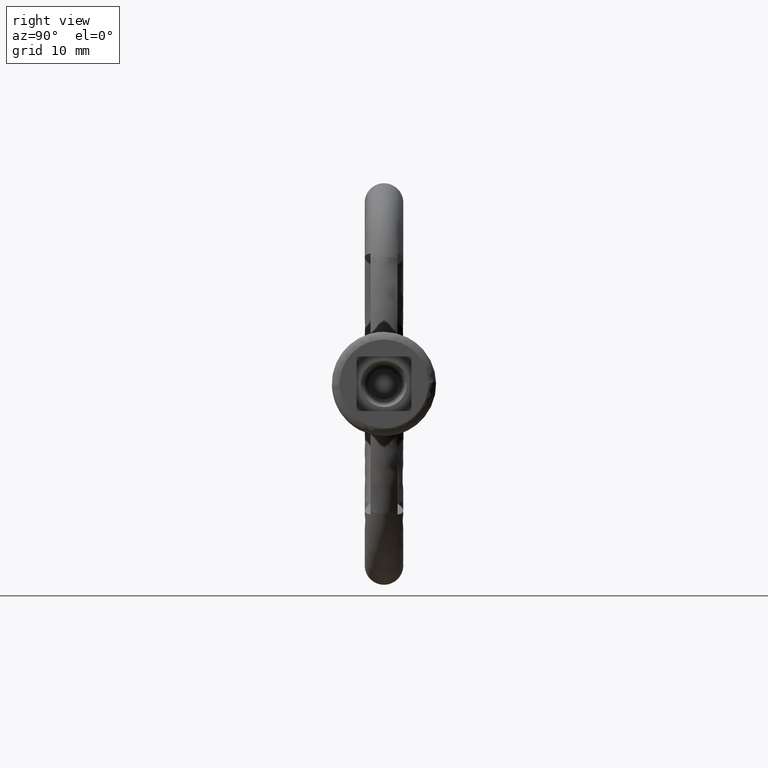
[diagram: clean part render]
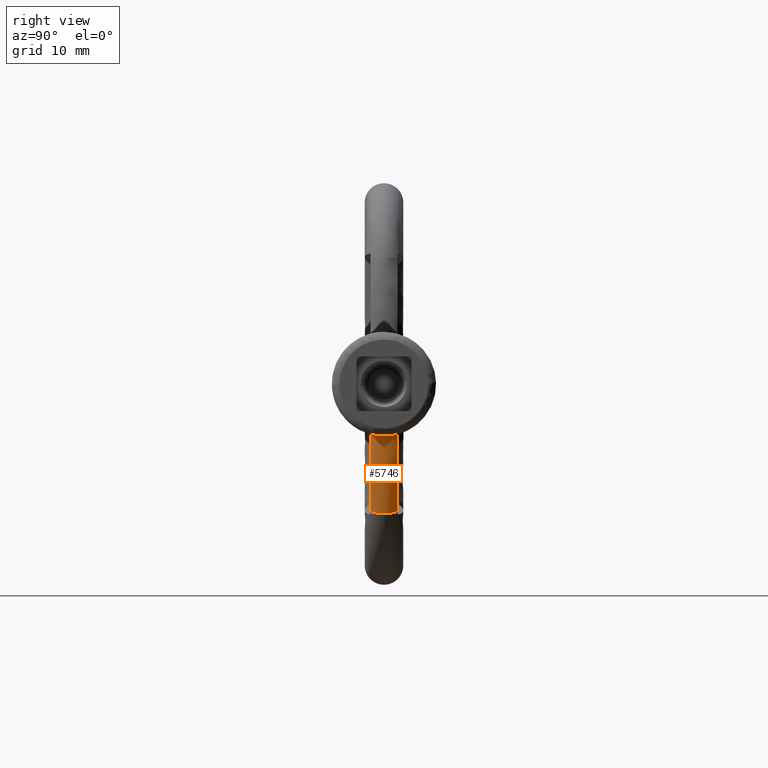
[diagram: same view with one face highlighted and labeled with its STEP entity id]
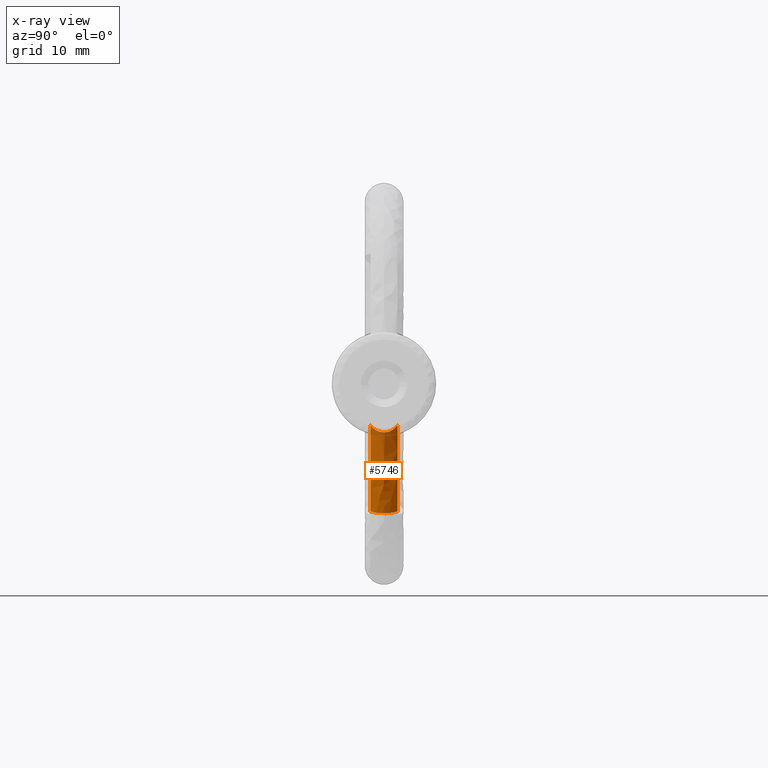
[diagram: x-ray of the same camera — body ghosted, the highlighted face saturated]
A machine part, right view. The second image highlights one B-rep face of the part: STEP entity #5746.
The next image is the same camera in x-ray: the body ghosted, the highlighted face saturated — about 6% of this face is hidden behind the body in this view.
In plain terms, the highlighted face is a freeform B-spline surface patch.
Its self-contained STEP definition (entity closure, byte-faithful):
#3689=CARTESIAN_POINT('',(-49.542227668088202,1.750000083120905,-16.514882048296450));
#3690=VERTEX_POINT('',#3689);
#3700=CARTESIAN_POINT('',(-49.542488641483303,-1.750000083120950,-16.514784746970950));
#3701=VERTEX_POINT('',#3700);
#3702=CARTESIAN_POINT('',(-49.542227668088202,1.750000083120905,-16.514882048296450));
#3703=CARTESIAN_POINT('',(-49.436352807175950,1.634605096142044,-16.554356434171599));
#3704=CARTESIAN_POINT('',(-49.342369711688221,1.509065012805741,-16.589397098656640));
#3705=CARTESIAN_POINT('',(-49.238999088108152,1.340103888891454,-16.627937812980289));
#3706=CARTESIAN_POINT('',(-49.219038310433163,1.305703093830373,-16.635379991641880));
#3707=CARTESIAN_POINT('',(-49.180556436336047,1.235673283520915,-16.649727578344759));
#3708=CARTESIAN_POINT('',(-49.161995270033422,1.199956078433738,-16.656647926046190));
#3709=CARTESIAN_POINT('',(-49.109002892454207,1.091969803959534,-16.676405611504041));
#3710=CARTESIAN_POINT('',(-49.077124383186217,1.018670869056449,-16.688291199879760));
#3711=CARTESIAN_POINT('',(-48.991519276759803,0.794970694440711,-16.720208222054779));
#3712=CARTESIAN_POINT('',(-48.947698251124223,0.640813425817311,-16.736546461894569));
#3713=CARTESIAN_POINT('',(-48.910311135892307,0.441523155305128,-16.750485881574392));
#3714=CARTESIAN_POINT('',(-48.903713155462221,0.401289736767499,-16.752945873969271));
#3715=CARTESIAN_POINT('',(-48.892443811560177,0.321031922938647,-16.757147538514481));
#3716=CARTESIAN_POINT('',(-48.887749961168261,0.280900951170760,-16.758897594693920));
#3717=CARTESIAN_POINT('',(-48.876475130904460,0.160501875860095,-16.763101304820761));
#3718=CARTESIAN_POINT('',(-48.868911231132962,-0.000046617480421,-16.765921430864900));
#3719=CARTESIAN_POINT('',(-48.876499829920178,-0.160628366531293,-16.763092096032480));
#3720=CARTESIAN_POINT('',(-48.887800024746319,-0.281076988026819,-16.758878928977129));
#3721=CARTESIAN_POINT('',(-48.892503489158813,-0.321228584405065,-16.757125288306760));
#3722=CARTESIAN_POINT('',(-48.903795624121472,-0.401535914688346,-16.752915126338070));
#3723=CARTESIAN_POINT('',(-48.910404352219132,-0.441778718152602,-16.750451126777751));
#3724=CARTESIAN_POINT('',(-48.947809572292549,-0.640948742032351,-16.736504956887089));
#3725=CARTESIAN_POINT('',(-48.991643869153087,-0.795095001319536,-16.720161769004399));
#3726=CARTESIAN_POINT('',(-49.077328284832632,-1.018877551538323,-16.688215177159229));
#3727=CARTESIAN_POINT('',(-49.109243021302213,-1.092220657593319,-16.676316081827341));
#3728=CARTESIAN_POINT('',(-49.162313053045423,-1.200296009927113,-16.656529443784819));
#3729=CARTESIAN_POINT('',(-49.180869232341131,-1.235978111354045,-16.649610955443809));
#3730=CARTESIAN_POINT('',(-49.219330212308250,-1.305929601268238,-16.635271158914140));
#3731=CARTESIAN_POINT('',(-49.239281249497793,-1.340296246384108,-16.627832611894519));
#3732=CARTESIAN_POINT('',(-49.342609186727437,-1.509109319814224,-16.589307812763110));
#3733=CARTESIAN_POINT('',(-49.436576746225093,-1.634603150956800,-16.554272940722871));
#3734=CARTESIAN_POINT('',(-49.542488641483303,-1.750000083120950,-16.514784746970950));
#3735=B_SPLINE_CURVE_WITH_KNOTS('',3,(#3702,#3703,#3704,#3705,#3706,#3707,#3708,#3709,#3710,#3711,#3712,#3713,#3714,#3715,#3716,#3717,#3718,#3719,#3720,#3721,#3722,#3723,#3724,#3725,#3726,#3727,#3728,#3729,#3730,#3731,#3732,#3733,#3734),.UNSPECIFIED.,.F.,.U.,(4,2,2,2,2,2,2,2,1,2,2,2,2,2,2,2,4),(0.0,0.124999999999990,0.156249999999989,0.187499999999988,0.249999999999988,0.374999999999988,0.406249999999988,0.437499999999989,0.499999999999990,0.562499999999991,0.593749999999991,0.624999999999992,0.749999999999992,0.812499999999993,0.843749999999994,0.874999999999995,1.0),.UNSPECIFIED.);
#3736=EDGE_CURVE('',#3690,#3701,#3735,.T.);
#4295=CARTESIAN_POINT('',(-47.075520128235993,-1.750000083120955,-5.325313244111761));
#4296=VERTEX_POINT('',#4295);
#4333=CARTESIAN_POINT('',(-46.591765696887897,-0.889006842577544,-6.074761937357280));
#4334=VERTEX_POINT('',#4333);
#4335=CARTESIAN_POINT('',(-46.591765696887933,-0.889006842577576,-6.074761937357240));
#4336=CARTESIAN_POINT('',(-46.622055321377061,-0.979022905404405,-6.031425578782282));
#4337=CARTESIAN_POINT('',(-46.655792208353454,-1.064137838752979,-5.982620537957151));
#4338=CARTESIAN_POINT('',(-46.728856052240680,-1.225663909506794,-5.874937776632524));
#4339=CARTESIAN_POINT('',(-46.768190976832081,-1.302064257696822,-5.816048274744129));
#4340=CARTESIAN_POINT('',(-46.830677815279508,-1.410552309743435,-5.720340673659657));
#4341=CARTESIAN_POINT('',(-46.852024615951457,-1.445570891637962,-5.687302509143936));
#4342=CARTESIAN_POINT('',(-46.895264499839982,-1.512888964961958,-5.619587953174449));
#4343=CARTESIAN_POINT('',(-46.917210113654043,-1.545280347784981,-5.584831352364615));
#4344=CARTESIAN_POINT('',(-46.983850977750393,-1.638893618314006,-5.477966522992940));
#4345=CARTESIAN_POINT('',(-47.029345474905462,-1.696562773274048,-5.403267379843959));
#4346=CARTESIAN_POINT('',(-47.075520128235993,-1.750000083120960,-5.325313244111780));
#4347=B_SPLINE_CURVE_WITH_KNOTS('',3,(#4335,#4336,#4337,#4338,#4339,#4340,#4341,#4342,#4343,#4344,#4345,#4346),.UNSPECIFIED.,.F.,.U.,(4,2,2,2,2,4),(0.0,0.249999999999997,0.499999999999994,0.624999999999995,0.749999999999997,1.0),.UNSPECIFIED.);
#4348=EDGE_CURVE('',#4334,#4296,#4347,.T.);
#4453=CARTESIAN_POINT('',(-46.591762697737913,0.889302414401098,-6.074687545378510));
#4454=VERTEX_POINT('',#4453);
#4470=CARTESIAN_POINT('',(-46.591762697737913,0.889302414401098,-6.074687545378510));
#4471=CARTESIAN_POINT('',(-46.569051518642432,0.821807789692495,-6.107187469426424));
#4472=CARTESIAN_POINT('',(-46.548435407724433,0.752257730846570,-6.135326337162444));
#4473=CARTESIAN_POINT('',(-46.521168465722901,0.644885993262162,-6.171481173932754));
#4474=CARTESIAN_POINT('',(-46.512689486557328,0.608586541356100,-6.182521058734532));
#4475=CARTESIAN_POINT('',(-46.497046540548610,0.534960307101992,-6.202620472309302));
#4476=CARTESIAN_POINT('',(-46.489863104770834,0.497512719883637,-6.211704256108045));
#4477=CARTESIAN_POINT('',(-46.457766303058293,0.309309809348197,-6.251865952380342));
#4478=CARTESIAN_POINT('',(-46.444227596778141,0.156346724316924,-6.267654642252473));
#4479=CARTESIAN_POINT('',(-46.444158826584932,-0.076766264290345,-6.267746945149627));
#4480=CARTESIAN_POINT('',(-46.447594844199926,-0.155408760157789,-6.263671770039501));
#4481=CARTESIAN_POINT('',(-46.461003430619577,-0.310209084563453,-6.247490788610668));
#4482=CARTESIAN_POINT('',(-46.470888623651327,-0.386112021366676,-6.235483199034554));
#4483=CARTESIAN_POINT('',(-46.496344757256637,-0.535047480916199,-6.203636976646159));
#4484=CARTESIAN_POINT('',(-46.511918651230403,-0.608078317174014,-6.183793441134776));
#4485=CARTESIAN_POINT('',(-46.548230280372778,-0.751222932873680,-6.135669550341196));
#4486=CARTESIAN_POINT('',(-46.569047358869199,-0.821491468025731,-6.107265808210951));
#4487=CARTESIAN_POINT('',(-46.591765696887897,-0.889006842577544,-6.074761937357280));
#4488=B_SPLINE_CURVE_WITH_KNOTS('',3,(#4470,#4471,#4472,#4473,#4474,#4475,#4476,#4477,#4478,#4479,#4480,#4481,#4482,#4483,#4484,#4485,#4486,#4487),.UNSPECIFIED.,.F.,.U.,(4,2,2,2,2,2,2,2,4),(0.0,0.125000000000000,0.187500000000000,0.250000000000000,0.500000000000000,0.625000000000000,0.750000000000000,0.875000000000000,1.0),.UNSPECIFIED.);
#4489=EDGE_CURVE('',#4454,#4334,#4488,.T.);
#4544=CARTESIAN_POINT('',(-47.075261789441697,1.750000083120935,-5.325572649450949));
#4545=VERTEX_POINT('',#4544);
#4589=CARTESIAN_POINT('',(-47.075261789441697,1.750000083120970,-5.325572649450949));
#4590=CARTESIAN_POINT('',(-46.983063487724742,1.643263802456131,-5.481226556282470));
#4591=CARTESIAN_POINT('',(-46.893818063663041,1.520190950813069,-5.623439923555766));
#4592=CARTESIAN_POINT('',(-46.769506672357352,1.304790832544557,-5.813936333877050));
#4593=CARTESIAN_POINT('',(-46.729520367145497,1.227358331891607,-5.873840061618807));
#4594=CARTESIAN_POINT('',(-46.655917374799252,1.064794797618159,-5.982347308906584));
#4595=CARTESIAN_POINT('',(-46.622062460022107,0.979349306089796,-6.031328283018690));
#4596=CARTESIAN_POINT('',(-46.591762697737892,0.889302414401115,-6.074687545378525));
#4597=B_SPLINE_CURVE_WITH_KNOTS('',3,(#4589,#4590,#4591,#4592,#4593,#4594,#4595,#4596),.UNSPECIFIED.,.F.,.U.,(4,2,2,4),(0.0,0.499999999999997,0.749999999999998,1.0),.UNSPECIFIED.);
#4598=EDGE_CURVE('',#4545,#4454,#4597,.T.);
#5456=CARTESIAN_POINT('',(-49.542227668088202,1.750000083120905,-16.514882048296450));
#5457=CARTESIAN_POINT('',(-49.541368447066453,1.750000083122209,-16.512547654743639));
#5458=CARTESIAN_POINT('',(-49.540507482275473,1.750000083122209,-16.510208520517409));
#5459=CARTESIAN_POINT('',(-49.328141045218267,1.750000083122209,-15.933234531078471));
#5460=CARTESIAN_POINT('',(-49.120571820382203,1.750000083122209,-15.329144110259691));
#5461=CARTESIAN_POINT('',(-48.741030355812313,1.750000083122209,-14.137451051057930));
#5462=CARTESIAN_POINT('',(-48.564495040787307,1.750000083122209,-13.537461999376930));
#5463=CARTESIAN_POINT('',(-48.075069351152727,1.750000083122209,-11.726754575610000));
#5464=CARTESIAN_POINT('',(-47.802382239598558,1.750000083122209,-10.505287517157850));
#5465=CARTESIAN_POINT('',(-47.352770811373077,1.750000083122209,-7.966967845864183));
#5466=CARTESIAN_POINT('',(-47.182906888151592,1.750000083122209,-6.648905702699103));
#5467=CARTESIAN_POINT('',(-47.075261789441697,1.750000083120935,-5.325572649450949));
#5468=B_SPLINE_CURVE_WITH_KNOTS('',3,(#5456,#5457,#5458,#5459,#5460,#5461,#5462,#5463,#5464,#5465,#5466,#5467),.UNSPECIFIED.,.F.,.U.,(4,2,2,2,2,4),(-0.000509943951257,0.0,0.125000000000000,0.250000000000000,0.500000000000000,0.765438147902418),.UNSPECIFIED.);
#5469=EDGE_CURVE('',#3690,#4545,#5468,.T.);
#5484=CARTESIAN_POINT('',(-47.075520128235993,-1.750000083120955,-5.325313244111761));
#5485=CARTESIAN_POINT('',(-47.183163515997776,-1.750000083120298,-6.648717154991449));
#5486=CARTESIAN_POINT('',(-47.353032774455812,-1.750000083120298,-7.966849896798393));
#5487=CARTESIAN_POINT('',(-47.802655054520500,-1.750000083120298,-10.505230833076020));
#5488=CARTESIAN_POINT('',(-48.075340370636830,-1.750000083120298,-11.726689849093830));
#5489=CARTESIAN_POINT('',(-48.564762837774339,-1.750000083120298,-13.537385350725399));
#5490=CARTESIAN_POINT('',(-48.741296990448177,-1.750000083120298,-14.137370451933471));
#5491=CARTESIAN_POINT('',(-49.120835956025303,-1.750000083120298,-15.329055664740091));
#5492=CARTESIAN_POINT('',(-49.328403132879210,-1.750000083120298,-15.933140257117870));
#5493=CARTESIAN_POINT('',(-49.540768723477058,-1.750000083120298,-16.510111946792669));
#5494=CARTESIAN_POINT('',(-49.541629553970623,-1.750000083120298,-16.512450716149932));
#5495=CARTESIAN_POINT('',(-49.542488641483303,-1.750000083120950,-16.514784746970950));
#5496=B_SPLINE_CURVE_WITH_KNOTS('',3,(#5484,#5485,#5486,#5487,#5488,#5489,#5490,#5491,#5492,#5493,#5494,#5495),.UNSPECIFIED.,.F.,.U.,(4,2,2,2,2,4),(-0.000509865782688,0.264944116628860,0.514944116628860,0.639944116628860,0.764944116628860,0.765453982411548),.UNSPECIFIED.);
#5497=EDGE_CURVE('',#4296,#3701,#5496,.T.);
#5641=CARTESIAN_POINT('',(-49.566396912364418,-1.750000083120963,-16.579739788941939));
#5642=CARTESIAN_POINT('',(-49.142117571544013,-1.288403911833038,-16.736000098352569));
#5643=CARTESIAN_POINT('',(-48.895621007349078,-0.646095519171101,-16.826783753562580));
#5644=CARTESIAN_POINT('',(-48.895621007349078,0.654619796672772,-16.826783753562580));
#5645=CARTESIAN_POINT('',(-49.148443578676812,1.305067233547988,-16.733670256343309));
#5646=CARTESIAN_POINT('',(-49.619990465364097,1.807578217622273,-16.560001507181742));
#5647=CARTESIAN_POINT('',(-49.658565645499820,1.845878873242089,-16.545794429429801));
#5648=CARTESIAN_POINT('',(-49.698329410883012,1.882706639460988,-16.531149600694810));
#5649=CARTESIAN_POINT('',(-49.557671085113441,-1.750000083120963,-16.556033272601020));
#5650=CARTESIAN_POINT('',(-49.133408168670627,-1.288403911833038,-16.712338204651921));
#5651=CARTESIAN_POINT('',(-48.886921146662338,-0.646095519171101,-16.803147784592280));
#5652=CARTESIAN_POINT('',(-48.886921146662338,0.654619796672772,-16.803147784592280));
#5653=CARTESIAN_POINT('',(-49.139733930915888,1.305067233547988,-16.710007697318861));
#5654=CARTESIAN_POINT('',(-49.611262563440448,1.807578217622273,-16.536289354257551));
#5655=CARTESIAN_POINT('',(-49.649836250283272,1.845878873242089,-16.522078219446449));
#5656=CARTESIAN_POINT('',(-49.689598476361972,1.882706639460988,-16.507429208645480));
#5657=CARTESIAN_POINT('',(-49.548890179765522,-1.750000083120963,-16.532176963746601));
#5658=CARTESIAN_POINT('',(-49.124629724999103,-1.288403911833038,-16.688488582545212));
#5659=CARTESIAN_POINT('',(-48.878144133168277,-0.646095519171101,-16.779302047332600));
#5660=CARTESIAN_POINT('',(-48.878144133168277,0.654619796672772,-16.779302047332600));
#5661=CARTESIAN_POINT('',(-49.130955450540753,1.305067233547988,-16.686157975512700));
#5662=CARTESIAN_POINT('',(-49.602481347141769,1.807578217622273,-16.512432200755431));
#5663=CARTESIAN_POINT('',(-49.641054810170701,1.845878873242089,-16.498220457989920));
#5664=CARTESIAN_POINT('',(-49.680816805539308,1.882706639460988,-16.483570820502131));
#5665=CARTESIAN_POINT('',(-49.328403132879821,-1.750000083120963,-15.933140257117641));
#5666=CARTESIAN_POINT('',(-48.902938938025258,-1.288403911833038,-16.086181398402221));
#5667=CARTESIAN_POINT('',(-48.655754000814703,-0.646095519171101,-16.175094790778100));
#5668=CARTESIAN_POINT('',(-48.655754000814703,0.654619796672772,-16.175094790778100));
#5669=CARTESIAN_POINT('',(-48.909282611337801,1.305067233547988,-16.083899554206099));
#5670=CARTESIAN_POINT('',(-49.382146352694178,1.807578217622273,-15.913808609951641));
#5671=CARTESIAN_POINT('',(-49.420829258927782,1.845878873242089,-15.899894216708219));
#5672=CARTESIAN_POINT('',(-49.460704069684368,1.882706639460988,-15.885551090728400));
#5673=CARTESIAN_POINT('',(-49.120835956025928,-1.750000083120963,-15.329055664739879));
#5674=CARTESIAN_POINT('',(-48.692047136561889,-1.288403911833038,-15.472635113123740));
#5675=CARTESIAN_POINT('',(-48.442930668719200,-0.646095519171101,-15.556051478970950));
#5676=CARTESIAN_POINT('',(-48.442930668719200,0.654619796672772,-15.556051478970950));
#5677=CARTESIAN_POINT('',(-48.698440380044303,1.305067233547988,-15.470494342817000));
#5678=CARTESIAN_POINT('',(-49.174999131346169,1.807578217622273,-15.310919187102890));
#5679=CARTESIAN_POINT('',(-49.213984310117823,1.845878873242089,-15.297865044342890));
#5680=CARTESIAN_POINT('',(-49.254170707087162,1.882706639460988,-15.284408675035969));
#5681=CARTESIAN_POINT('',(-48.741296990448802,-1.750000083120963,-14.137370451933281));
#5682=CARTESIAN_POINT('',(-48.308451391163587,-1.288403911833038,-14.268212329306269));
#5683=CARTESIAN_POINT('',(-48.056978027309100,-0.646095519171101,-14.344228458593300));
#5684=CARTESIAN_POINT('',(-48.056978027309100,0.654619796672772,-14.344228458593300));
#5685=CARTESIAN_POINT('',(-48.314905121253702,1.305067233547988,-14.266261476248140));
#5686=CARTESIAN_POINT('',(-48.795972604682383,1.807578217622273,-14.120842941835781));
#5687=CARTESIAN_POINT('',(-48.835326623030532,1.845878873242089,-14.108946890099670));
#5688=CARTESIAN_POINT('',(-48.875893224326383,1.882706639460988,-14.096684295121310));
#5689=CARTESIAN_POINT('',(-48.564762837774957,-1.750000083120963,-13.537385350725220));
#5690=CARTESIAN_POINT('',(-48.130030317110943,-1.288403911833038,-13.661814164691830));
#5691=CARTESIAN_POINT('',(-47.877460695218303,-0.646095519171101,-13.734104451252261));
#5692=CARTESIAN_POINT('',(-47.877460695218303,0.654619796672772,-13.734104451252261));
#5693=CARTESIAN_POINT('',(-48.136512181208502,1.305067233547988,-13.659958930441780));
#5694=CARTESIAN_POINT('',(-48.619676801631513,1.807578217622273,-13.521667917434421));
#5695=CARTESIAN_POINT('',(-48.659202377548198,1.845878873242089,-13.510354936925991));
#5696=CARTESIAN_POINT('',(-48.699945822474632,1.882706639460988,-13.498693378868721));
#5697=CARTESIAN_POINT('',(-48.075340370637463,-1.750000083120963,-11.726689849093670));
#5698=CARTESIAN_POINT('',(-47.635376557880861,-1.288403911833038,-11.831764674035920));
#5699=CARTESIAN_POINT('',(-47.379767675288697,-0.646095519171101,-11.892810736947400));
#5700=CARTESIAN_POINT('',(-47.379767675288697,0.654619796672772,-11.892810736947400));
#5701=CARTESIAN_POINT('',(-47.641936420570097,1.305067233547988,-11.830198007860799));
#5702=CARTESIAN_POINT('',(-48.130915133884997,1.807578217622273,-11.713417147225639));
#5703=CARTESIAN_POINT('',(-48.170916335210180,1.845878873242089,-11.703863817827040));
#5704=CARTESIAN_POINT('',(-48.212150060598972,1.882706639460988,-11.694016129559660));
#5705=CARTESIAN_POINT('',(-47.802655054521139,-1.750000083120963,-10.505230833075890));
#5706=CARTESIAN_POINT('',(-47.359776589023838,-1.288403911833038,-10.597249843626781));
#5707=CARTESIAN_POINT('',(-47.102474360042002,-0.646095519171101,-10.650710777872140));
#5708=CARTESIAN_POINT('',(-47.102474360042002,0.654619796672772,-10.650710777872140));
#5709=CARTESIAN_POINT('',(-47.366379909200496,1.305067233547988,-10.595877839710759));
#5710=CARTESIAN_POINT('',(-47.858597986993743,1.807578217622273,-10.493607298191060));
#5711=CARTESIAN_POINT('',(-47.898864186502252,1.845878873242089,-10.485240994281360));
#5712=CARTESIAN_POINT('',(-47.940371075245181,1.882706639460988,-10.476616906341400));
#5713=CARTESIAN_POINT('',(-47.349022902031827,-1.750000083120963,-7.944211819970519));
#5714=CARTESIAN_POINT('',(-46.901295696530212,-1.288403911833038,-8.008856855259202));
#5715=CARTESIAN_POINT('',(-46.641176460849067,-0.646095519171101,-8.046414137827538));
#5716=CARTESIAN_POINT('',(-46.641176460849067,0.654619796672772,-8.046414137827538));
#5717=CARTESIAN_POINT('',(-46.907971311444669,1.305067233547988,-8.007892997453748));
#5718=CARTESIAN_POINT('',(-47.405578311189991,1.807578217622273,-7.936046074454347));
#5719=CARTESIAN_POINT('',(-47.446285354739317,1.845878873242089,-7.930168593179117));
#5720=CARTESIAN_POINT('',(-47.488246670887207,1.882706639460988,-7.924110013915196));
#5721=CARTESIAN_POINT('',(-47.177298616775872,-1.750000083120963,-6.603060551832789));
#5722=CARTESIAN_POINT('',(-46.727735901142474,-1.288403911833038,-6.653370417624703));
#5723=CARTESIAN_POINT('',(-46.466550276185323,-0.646095519171101,-6.682599295559073));
#5724=CARTESIAN_POINT('',(-46.466550276185323,0.654619796672772,-6.682599295559073));
#5725=CARTESIAN_POINT('',(-46.734438883522209,1.305067233547988,-6.652620297269472));
#5726=CARTESIAN_POINT('',(-47.234085881459578,1.807578217622273,-6.596705577175029));
#5727=CARTESIAN_POINT('',(-47.274959808302881,1.845878873242089,-6.592131439457710));
#5728=CARTESIAN_POINT('',(-47.317093149782153,1.882706639460988,-6.587416362603060));
#5729=CARTESIAN_POINT('',(-47.069983794632257,-1.750000083120963,-5.256554675808314));
#5730=CARTESIAN_POINT('',(-46.619274022583973,-1.288403911833038,-5.292472138282449));
#5731=CARTESIAN_POINT('',(-46.357421984162620,-0.646095519171101,-5.313339360045779));
#5732=CARTESIAN_POINT('',(-46.357421984162620,0.654619796672772,-5.313339360045779));
#5733=CARTESIAN_POINT('',(-46.625994107580702,1.305067233547988,-5.291936608734000));
#5734=CARTESIAN_POINT('',(-47.126915951661282,1.807578217622273,-5.252017701594584));
#5735=CARTESIAN_POINT('',(-47.167894168069452,1.845878873242089,-5.248752111094046));
#5736=CARTESIAN_POINT('',(-47.210135012502043,1.882706639460988,-5.245385900643591));
#5737=B_SPLINE_SURFACE_WITH_KNOTS('',3,3,((#5641,#5649,#5657,#5665,#5673,#5681,#5689,#5697,#5705,#5713,#5721,#5729),(#5642,#5650,#5658,#5666,#5674,#5682,#5690,#5698,#5706,#5714,#5722,#5730),(#5643,#5651,#5659,#5667,#5675,#5683,#5691,#5699,#5707,#5715,#5723,#5731),(#5644,#5652,#5660,#5668,#5676,#5684,#5692,#5700,#5708,#5716,#5724,#5732),(#5645,#5653,#5661,#5669,#5677,#5685,#5693,#5701,#5709,#5717,#5725,#5733),(#5646,#5654,#5662,#5670,#5678,#5686,#5694,#5702,#5710,#5718,#5726,#5734),(#5647,#5655,#5663,#5671,#5679,#5687,#5695,#5703,#5711,#5719,#5727,#5735),(#5648,#5656,#5664,#5672,#5680,#5688,#5696,#5704,#5712,#5720,#5728,#5736)),.UNSPECIFIED.,.F.,.F.,.U.,(4,2,2,4),(4,2,2,2,2,4),(0.0,1.938430156875295,3.901576360678466,4.070092504585343),(0.0,0.081639628255466,2.003579479017063,3.925519329778660,7.769399031301854,11.921572685241699),.UNSPECIFIED.);
#5738=ORIENTED_EDGE('',*,*,#5469,.T.);
#5739=ORIENTED_EDGE('',*,*,#4598,.T.);
#5740=ORIENTED_EDGE('',*,*,#4489,.T.);
#5741=ORIENTED_EDGE('',*,*,#4348,.T.);
#5742=ORIENTED_EDGE('',*,*,#5497,.T.);
#5743=ORIENTED_EDGE('',*,*,#3736,.F.);
#5744=EDGE_LOOP('',(#5738,#5739,#5740,#5741,#5742,#5743));
#5745=FACE_OUTER_BOUND('',#5744,.T.);
#5746=ADVANCED_FACE('',(#5745),#5737,.T.);